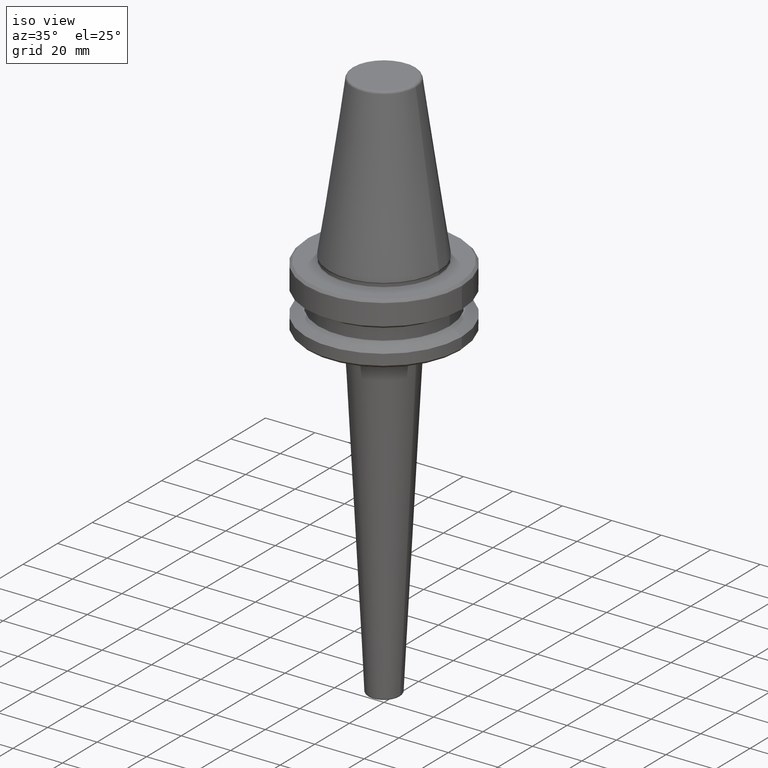
[diagram: clean part render]
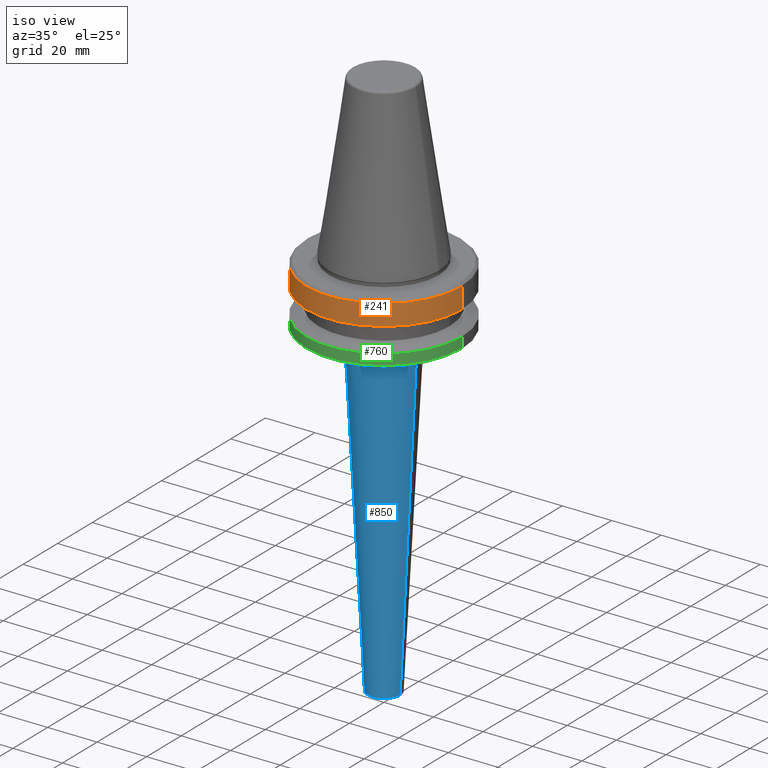
[diagram: same view with three faces highlighted in distinct colors, each labeled with its STEP entity id]
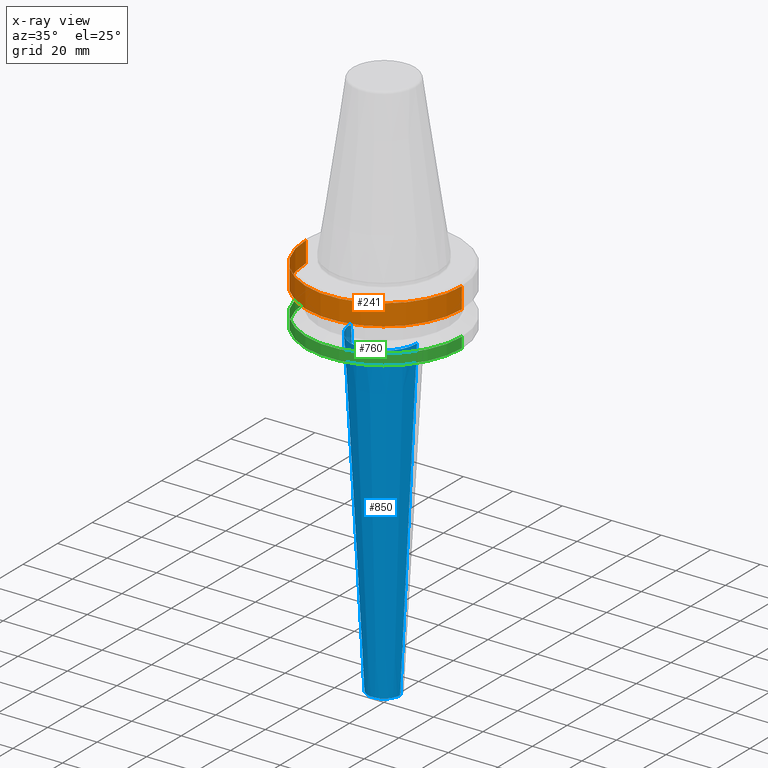
[diagram: x-ray of the same camera — body ghosted, the three highlighted faces saturated]
A machine part, iso view with three faces highlighted in distinct colors.
The next image is the same camera in x-ray (body ghosted, the three faces saturated) — at least one of them is partly hidden behind the body in this view.
Their STEP definitions:

[orange] entity #241 — the highlighted cylindrical surface (partial cylindrical patch) has radius 31.5 mm, axis along (-0, -0, -1).
#1 = DIRECTION ( 'NONE',  ( -1.000000000000000000, 0.0000000000000000000, 0.0000000000000000000 ) ) ;
#64 = DIRECTION ( 'NONE',  ( -1.000000000000000000, 0.0000000000000000000, 0.0000000000000000000 ) ) ;
#126 = CARTESIAN_POINT ( 'NONE',  ( 0.0000000000000000000, 0.0000000000000000000, 0.0000000000000000000 ) ) ;
#165 = CARTESIAN_POINT ( 'NONE',  ( -31.50000000000000000, 0.0000000000000000000, 0.0000000000000000000 ) ) ;
#241 = ADVANCED_FACE ( 'NONE', ( #717 ), #930, .T. ) ;
#245 = VERTEX_POINT ( 'NONE', #764 ) ;
#250 = DIRECTION ( 'NONE',  ( -0.0000000000000000000, -0.0000000000000000000, -1.000000000000000000 ) ) ;
#278 = CIRCLE ( 'NONE', #1009, 31.50000000000000000 ) ;
#304 = EDGE_CURVE ( 'NONE', #614, #903, #947, .T. ) ;
#332 = DIRECTION ( 'NONE',  ( -1.000000000000000000, 0.0000000000000000000, 0.0000000000000000000 ) ) ;
#387 = VECTOR ( 'NONE', #250, 1000.000000000000000 ) ;
#457 = AXIS2_PLACEMENT_3D ( 'NONE', #677, #1018, #1 ) ;
#488 = LINE ( 'NONE', #165, #493 ) ;
#493 = VECTOR ( 'NONE', #1076, 1000.000000000000000 ) ;
#507 = DIRECTION ( 'NONE',  ( -0.0000000000000000000, -0.0000000000000000000, -1.000000000000000000 ) ) ;
#509 = LINE ( 'NONE', #802, #387 ) ;
#556 = ORIENTED_EDGE ( 'NONE', *, *, #587, .T. ) ;
#587 = EDGE_CURVE ( 'NONE', #903, #245, #488, .T. ) ;
#588 = CARTESIAN_POINT ( 'NONE',  ( -31.50000000000000000, 0.0000000000000000000, -3.165685424949240100 ) ) ;
#614 = VERTEX_POINT ( 'NONE', #860 ) ;
#644 = VERTEX_POINT ( 'NONE', #1037 ) ;
#677 = CARTESIAN_POINT ( 'NONE',  ( 0.0000000000000000000, 0.0000000000000000000, -3.165685424949240100 ) ) ;
#693 = ORIENTED_EDGE ( 'NONE', *, *, #979, .F. ) ;
#717 = FACE_OUTER_BOUND ( 'NONE', #1142, .T. ) ;
#732 = EDGE_CURVE ( 'NONE', #614, #644, #509, .T. ) ;
#764 = CARTESIAN_POINT ( 'NONE',  ( -31.50000000000000000, 3.857637417314162700E-015, -11.60014666881784400 ) ) ;
#802 = CARTESIAN_POINT ( 'NONE',  ( 31.50000000000000000, 3.857637417314162700E-015, 0.0000000000000000000 ) ) ;
#809 = AXIS2_PLACEMENT_3D ( 'NONE', #126, #507, #64 ) ;
#840 = CARTESIAN_POINT ( 'NONE',  ( 0.0000000000000000000, 0.0000000000000000000, -11.60014666881784400 ) ) ;
#860 = CARTESIAN_POINT ( 'NONE',  ( 31.50000000000000000, 3.857637417314162700E-015, -3.165685424949240100 ) ) ;
#875 = ORIENTED_EDGE ( 'NONE', *, *, #304, .T. ) ;
#903 = VERTEX_POINT ( 'NONE', #588 ) ;
#930 = CYLINDRICAL_SURFACE ( 'NONE', #809, 31.50000000000000000 ) ;
#947 = CIRCLE ( 'NONE', #457, 31.50000000000000000 ) ;
#979 = EDGE_CURVE ( 'NONE', #644, #245, #278, .T. ) ;
#1009 = AXIS2_PLACEMENT_3D ( 'NONE', #840, #1048, #332 ) ;
#1018 = DIRECTION ( 'NONE',  ( -0.0000000000000000000, -0.0000000000000000000, -1.000000000000000000 ) ) ;
#1037 = CARTESIAN_POINT ( 'NONE',  ( 31.50000000000000000, 0.0000000000000000000, -11.60014666881784400 ) ) ;
#1048 = DIRECTION ( 'NONE',  ( -0.0000000000000000000, -0.0000000000000000000, -1.000000000000000000 ) ) ;
#1076 = DIRECTION ( 'NONE',  ( -0.0000000000000000000, -0.0000000000000000000, -1.000000000000000000 ) ) ;
#1142 = EDGE_LOOP ( 'NONE', ( #1150, #875, #556, #693 ) ) ;
#1150 = ORIENTED_EDGE ( 'NONE', *, *, #732, .F. ) ;

[blue] entity #850 — the highlighted conical surface has half-angle 3 deg.
#130 = CARTESIAN_POINT ( 'NONE',  ( 13.37090470856511000, 0.0000000000000000000, -28.89532808751410500 ) ) ;
#153 = CARTESIAN_POINT ( 'NONE',  ( 0.0000000000000000000, 0.0000000000000000000, -159.2418687649943600 ) ) ;
#197 = DIRECTION ( 'NONE',  ( -0.05233595624294397300, 6.409306129323727100E-018, 0.9986295347545739400 ) ) ;
#210 = CIRCLE ( 'NONE', #701, 6.539731974431757200 ) ;
#252 = AXIS2_PLACEMENT_3D ( 'NONE', #664, #1187, #1091 ) ;
#284 = ORIENTED_EDGE ( 'NONE', *, *, #928, .F. ) ;
#285 = CIRCLE ( 'NONE', #1167, 13.37090470856511200 ) ;
#293 = CARTESIAN_POINT ( 'NONE',  ( -13.47023464464449900, 1.649627974132767100E-015, -27.00000000000001100 ) ) ;
#302 = VECTOR ( 'NONE', #197, 1000.000000000000100 ) ;
#310 = LINE ( 'NONE', #293, #302 ) ;
#330 = CONICAL_SURFACE ( 'NONE', #252, 13.47023464464449900, 0.05235987755983002200 ) ;
#342 = FACE_OUTER_BOUND ( 'NONE', #853, .T. ) ;
#349 = DIRECTION ( 'NONE',  ( -0.0000000000000000000, -0.0000000000000000000, 1.000000000000000000 ) ) ;
#353 = DIRECTION ( 'NONE',  ( 1.000000000000000000, 0.0000000000000000000, 0.0000000000000000000 ) ) ;
#367 = CARTESIAN_POINT ( 'NONE',  ( 6.539731974431761700, 0.0000000000000000000, -159.2418687649943600 ) ) ;
#396 = CARTESIAN_POINT ( 'NONE',  ( -13.37090470856511000, 1.637463565304853700E-015, -28.89532808751410500 ) ) ;
#430 = DIRECTION ( 'NONE',  ( 0.05233595624294397300, 0.0000000000000000000, 0.9986295347545739400 ) ) ;
#458 = EDGE_CURVE ( 'NONE', #1173, #983, #537, .T. ) ;
#466 = CARTESIAN_POINT ( 'NONE',  ( 0.0000000000000000000, 0.0000000000000000000, -28.89532808751410500 ) ) ;
#470 = ORIENTED_EDGE ( 'NONE', *, *, #1087, .T. ) ;
#537 = LINE ( 'NONE', #838, #539 ) ;
#539 = VECTOR ( 'NONE', #430, 1000.000000000000100 ) ;
#611 = ORIENTED_EDGE ( 'NONE', *, *, #958, .T. ) ;
#664 = CARTESIAN_POINT ( 'NONE',  ( 0.0000000000000000000, 0.0000000000000000000, -27.00000000000001100 ) ) ;
#701 = AXIS2_PLACEMENT_3D ( 'NONE', #153, #349, #353 ) ;
#707 = VERTEX_POINT ( 'NONE', #396 ) ;
#768 = VERTEX_POINT ( 'NONE', #981 ) ;
#817 = ORIENTED_EDGE ( 'NONE', *, *, #458, .T. ) ;
#838 = CARTESIAN_POINT ( 'NONE',  ( 13.47023464464449900, 0.0000000000000000000, -27.00000000000001100 ) ) ;
#850 = ADVANCED_FACE ( 'NONE', ( #342 ), #330, .T. ) ;
#853 = EDGE_LOOP ( 'NONE', ( #284, #470, #817, #611 ) ) ;
#914 = DIRECTION ( 'NONE',  ( -0.0000000000000000000, -0.0000000000000000000, -1.000000000000000000 ) ) ;
#928 = EDGE_CURVE ( 'NONE', #768, #707, #310, .T. ) ;
#958 = EDGE_CURVE ( 'NONE', #983, #707, #285, .T. ) ;
#981 = CARTESIAN_POINT ( 'NONE',  ( -6.539731974431761700, 8.008861829769458800E-016, -159.2418687649943600 ) ) ;
#983 = VERTEX_POINT ( 'NONE', #130 ) ;
#1022 = DIRECTION ( 'NONE',  ( -1.000000000000000000, 0.0000000000000000000, 0.0000000000000000000 ) ) ;
#1087 = EDGE_CURVE ( 'NONE', #768, #1173, #210, .T. ) ;
#1091 = DIRECTION ( 'NONE',  ( 1.000000000000000000, 0.0000000000000000000, 0.0000000000000000000 ) ) ;
#1167 = AXIS2_PLACEMENT_3D ( 'NONE', #466, #914, #1022 ) ;
#1173 = VERTEX_POINT ( 'NONE', #367 ) ;
#1187 = DIRECTION ( 'NONE',  ( -0.0000000000000000000, -0.0000000000000000000, 1.000000000000000000 ) ) ;

[green] entity #760 — the highlighted cylindrical surface (partial cylindrical patch) has radius 31.5 mm, axis along (-0, -0, -1).
#17 = VERTEX_POINT ( 'NONE', #828 ) ;
#38 = DIRECTION ( 'NONE',  ( -0.0000000000000000000, -0.0000000000000000000, -1.000000000000000000 ) ) ;
#43 = CARTESIAN_POINT ( 'NONE',  ( -31.50000000000000700, 0.0000000000000000000, -21.59985333118215700 ) ) ;
#55 = ORIENTED_EDGE ( 'NONE', *, *, #606, .F. ) ;
#60 = DIRECTION ( 'NONE',  ( -0.0000000000000000000, -0.0000000000000000000, -1.000000000000000000 ) ) ;
#84 = CARTESIAN_POINT ( 'NONE',  ( 0.0000000000000000000, 0.0000000000000000000, -21.59985333118215700 ) ) ;
#152 = DIRECTION ( 'NONE',  ( -1.000000000000000000, 0.0000000000000000000, 0.0000000000000000000 ) ) ;
#200 = AXIS2_PLACEMENT_3D ( 'NONE', #308, #1023, #412 ) ;
#306 = AXIS2_PLACEMENT_3D ( 'NONE', #873, #38, #891 ) ;
#308 = CARTESIAN_POINT ( 'NONE',  ( 0.0000000000000000000, 0.0000000000000000000, -25.83431457505076200 ) ) ;
#363 = EDGE_CURVE ( 'NONE', #17, #1191, #953, .T. ) ;
#366 = CYLINDRICAL_SURFACE ( 'NONE', #306, 31.50000000000000000 ) ;
#391 = FACE_OUTER_BOUND ( 'NONE', #821, .T. ) ;
#412 = DIRECTION ( 'NONE',  ( -1.000000000000000000, 0.0000000000000000000, 0.0000000000000000000 ) ) ;
#451 = LINE ( 'NONE', #1211, #503 ) ;
#453 = CIRCLE ( 'NONE', #1149, 31.50000000000000700 ) ;
#461 = EDGE_CURVE ( 'NONE', #1060, #1051, #453, .T. ) ;
#491 = LINE ( 'NONE', #758, #506 ) ;
#500 = DIRECTION ( 'NONE',  ( -0.0000000000000000000, -0.0000000000000000000, -1.000000000000000000 ) ) ;
#503 = VECTOR ( 'NONE', #60, 1000.000000000000000 ) ;
#506 = VECTOR ( 'NONE', #500, 1000.000000000000000 ) ;
#589 = EDGE_CURVE ( 'NONE', #1051, #1191, #451, .T. ) ;
#598 = ORIENTED_EDGE ( 'NONE', *, *, #461, .T. ) ;
#606 = EDGE_CURVE ( 'NONE', #1060, #17, #491, .T. ) ;
#632 = ORIENTED_EDGE ( 'NONE', *, *, #363, .F. ) ;
#697 = DIRECTION ( 'NONE',  ( -0.0000000000000000000, -0.0000000000000000000, -1.000000000000000000 ) ) ;
#758 = CARTESIAN_POINT ( 'NONE',  ( 31.50000000000000000, 3.857637417314162700E-015, 0.0000000000000000000 ) ) ;
#760 = ADVANCED_FACE ( 'NONE', ( #391 ), #366, .T. ) ;
#821 = EDGE_LOOP ( 'NONE', ( #55, #598, #871, #632 ) ) ;
#828 = CARTESIAN_POINT ( 'NONE',  ( 31.50000000000000000, 3.857637417314161900E-015, -25.83431457505076200 ) ) ;
#871 = ORIENTED_EDGE ( 'NONE', *, *, #589, .T. ) ;
#873 = CARTESIAN_POINT ( 'NONE',  ( 0.0000000000000000000, 0.0000000000000000000, 0.0000000000000000000 ) ) ;
#891 = DIRECTION ( 'NONE',  ( -1.000000000000000000, 0.0000000000000000000, 0.0000000000000000000 ) ) ;
#953 = CIRCLE ( 'NONE', #200, 31.50000000000000000 ) ;
#1007 = CARTESIAN_POINT ( 'NONE',  ( 31.50000000000000700, 3.857637417314163500E-015, -21.59985333118215700 ) ) ;
#1023 = DIRECTION ( 'NONE',  ( -0.0000000000000000000, -0.0000000000000000000, -1.000000000000000000 ) ) ;
#1036 = CARTESIAN_POINT ( 'NONE',  ( -31.50000000000000000, 0.0000000000000000000, -25.83431457505076200 ) ) ;
#1051 = VERTEX_POINT ( 'NONE', #43 ) ;
#1060 = VERTEX_POINT ( 'NONE', #1007 ) ;
#1149 = AXIS2_PLACEMENT_3D ( 'NONE', #84, #697, #152 ) ;
#1191 = VERTEX_POINT ( 'NONE', #1036 ) ;
#1211 = CARTESIAN_POINT ( 'NONE',  ( -31.50000000000000000, 0.0000000000000000000, 0.0000000000000000000 ) ) ;